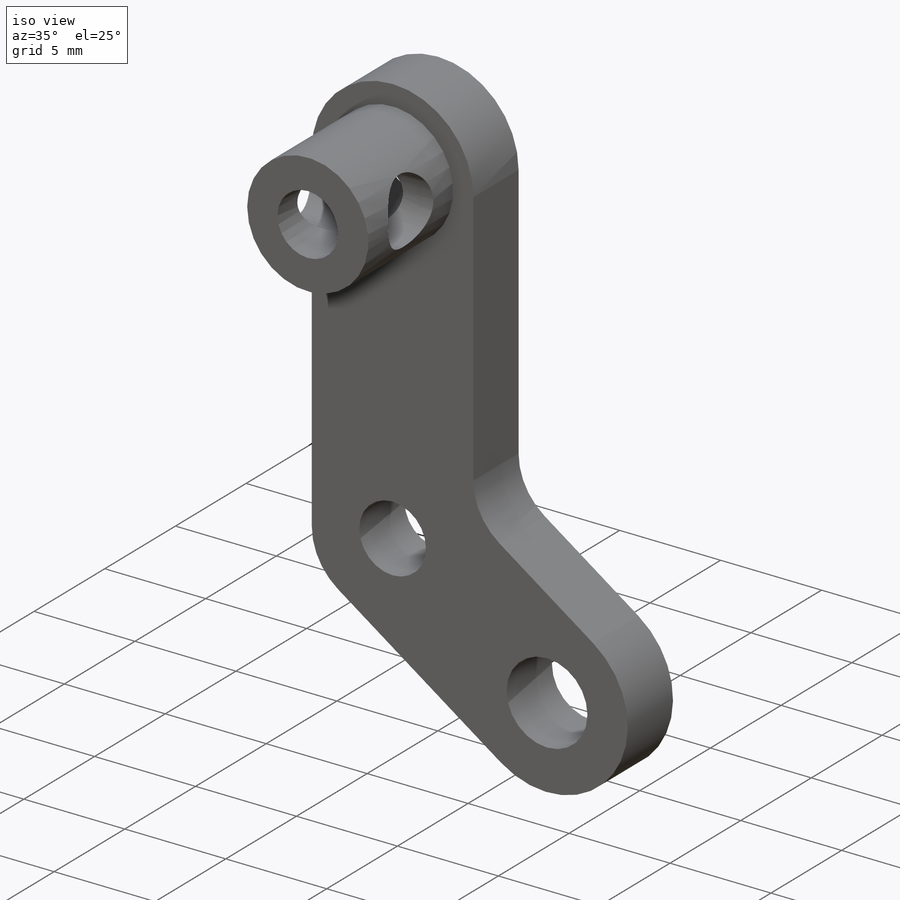
[diagram: iso view]
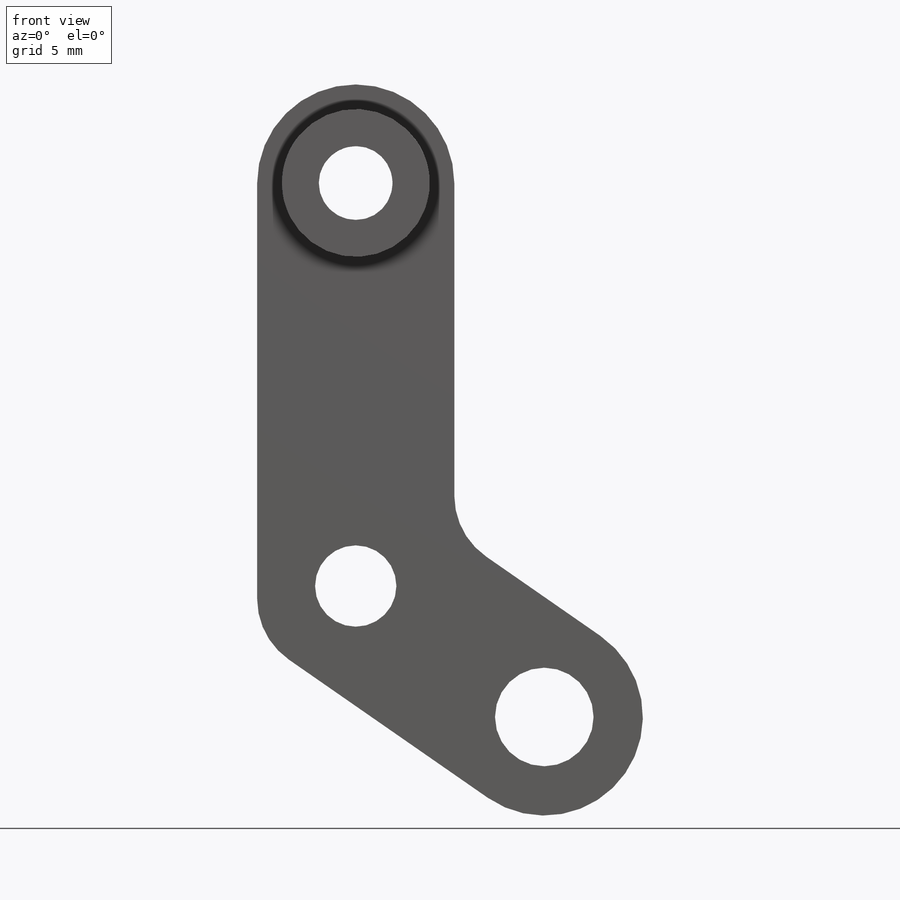
[diagram: front view]
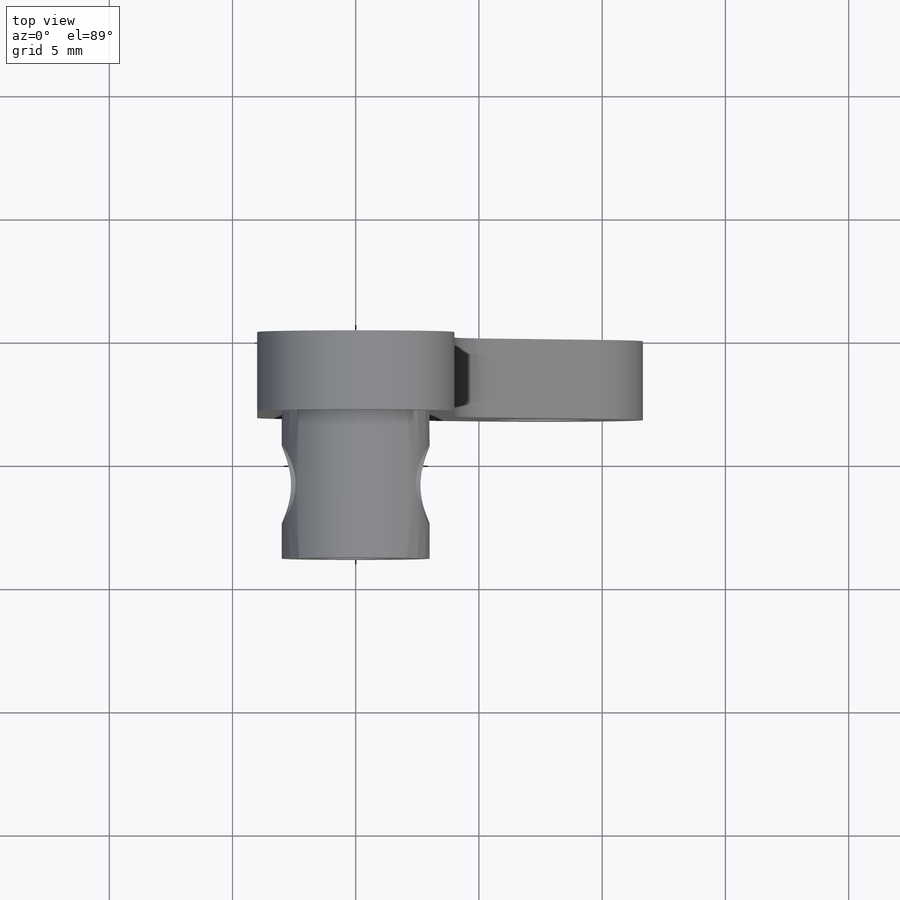
[diagram: top view]
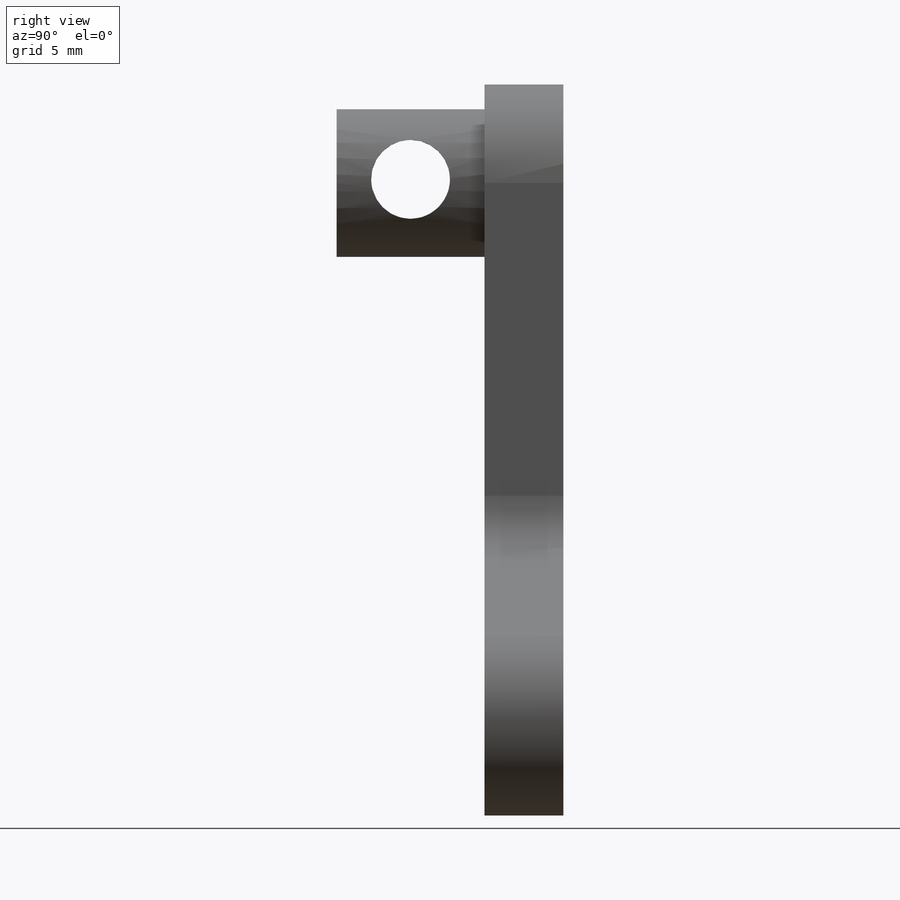
[diagram: right view]
SOLIDWORKS PART (.sldprt)
format: sldprt  version: not decoded by parser v0  size: 213,504 bytes
history: native  units: mm
features: sketch x5, extrude x2, material x1, hole x1, cut_extrude x1 (+16 scaffold rows collapsed)
feature tree (26):
  scaffold x16  (default folders/planes/origin — collapsed)
  material  "Material <not specified>"
  sketch  "Sketch1"  dims[c1.D1=4.0mm c1.D3=3.0mm c1.D4=2.0mm c2.D1=7.65mm c2.D4=16.35mm c3.D1=4.0mm c3.D2=4.0mm]
  extrude  "Boss-Extrude1"  Depth=3.2mm
  sketch  "Sketch5"  dims[D1=~2.861066mm]
  extrude  "Boss-Extrude2"  Depth=6mm
  hole  "CSK for M3 Flat Head Machine Screw2"  Diameter=3mm Depth=9.2mm
  sketch  "Sketch7"
  sketch  "Sketch6"  dims[hole-wizard template sketch: 55 standard entries collapsed; hole parameters kept: c17.Thru Hole Depth=9.2mm c17.Near C'Sink Dia.=6.0mm c17.D4=~3.666174mm c17.Near C'Sink Angle=90.0deg]
  sketch  "Sketch8"  dims[D1=~1.279352mm]
  cut_extrude  "Cut-Extrude2"  Depth=16mm
decode coverage: 8 of 9 modeling features carry decoded parameters
note: ~ marks probable driven/reference dimensions
note: suppression state not decoded; provenance and decode notes live in map.json
